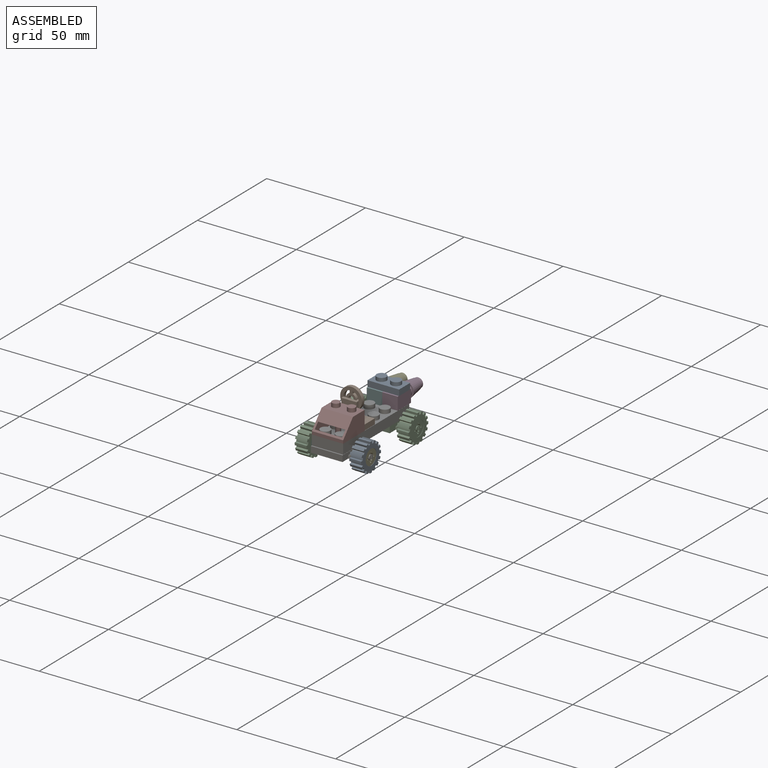
[diagram: assembled view]
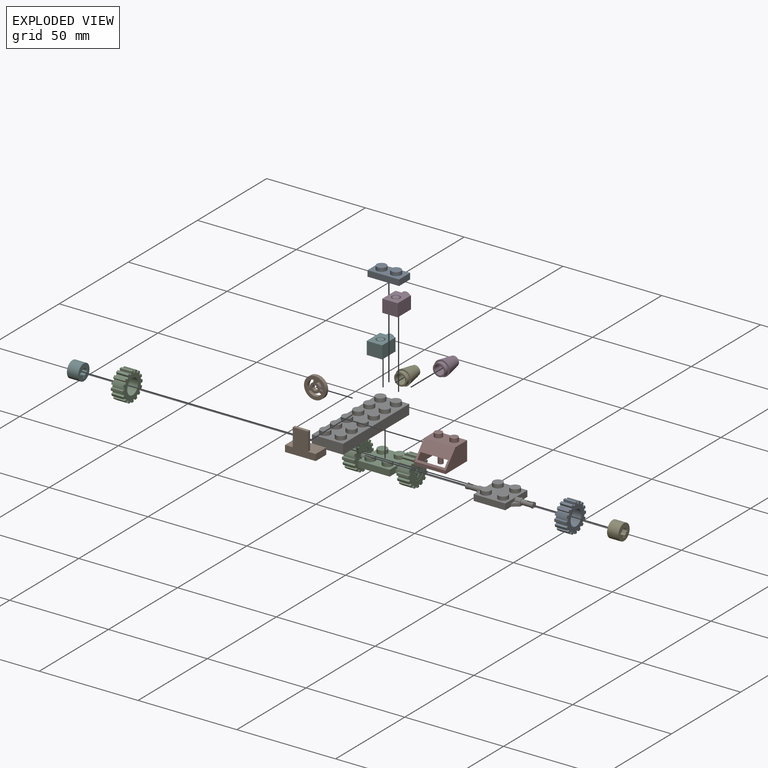
[diagram: exploded view]
GUIDED TOUR — MATED ASSEMBLY WITH SUBASSEMBLIES (Onshape document 5908bd3b1f64391017bcbc16, AutoMate assembly 5908bd3b1f64391017bcbc16_93580afd437a5e38cb3de206_40b358b850b188636dec0b28_default)

This assembly has 19 component occurrences arranged in 15 top-level units: 14 individual components plus 1 subassembly (S0). The tour has two levels: first the top level, where each subassembly is treated as one rigid unit; then each subassembly is toured internally in its own section (nesting deeper than one subassembly level is flattened into its subassembly's section).

Components are labeled P0..P18 across the whole record; subassembly units are labeled S0..S0. A mate is a constraint between two units; its type names the relative motion it leaves free:
  FASTENED — locks the two components together rigidly (no relative motion).
Axis/direction vectors are unit vectors and 'through' points are millimeter coordinates, both in the assembly's world frame.

TOP-LEVEL MATES (between units; each subassembly's internal mates are listed in its own section)
  1. FASTENED "Fastened 2": P16 <-> P18, direction (-1.000, 0.000, 0.000) through (-28.91, 1.36, -17.36) mm
  2. FASTENED "Fastened 4": P13 <-> P17, direction (1.000, 0.000, 0.000) through (-56.66, 1.36, -17.36) mm
  3. FASTENED "Fastened 9": P1 <-> P12, direction (0.000, 1.000, 0.000) through (-39.95, 11.06, 1.17) mm
  4. FASTENED "Fastened 10": P5 <-> P6, direction (0.000, 0.000, -1.000) through (-43.88, 37.84, -10.82) mm
  5. FASTENED "Fastened 7": P8 <-> P6, direction (-1.000, 0.000, 0.000) through (-39.95, -5.96, -10.82) mm
  6. FASTENED "Fastened 5": P6 <-> P18, direction (0.000, 0.000, -1.000) through (-39.91, 1.36, -15.82) mm
  7. FASTENED "Fastened 13": P4 <-> P5, direction (0.000, -1.000, 0.000) through (-43.86, 43.15, -6.83) mm
  8. FASTENED "Fastened 1": P17 <-> P18, direction (1.000, 0.000, 0.000) through (-50.91, 1.36, -17.36) mm
  9. FASTENED "Fastened 6": P6 <-> S0, direction (0.000, 0.000, -1.000) through (-40.07, 35.76, -15.82) mm
  10. FASTENED "Fastened 14": P11 <-> P3, direction (0.000, 0.000, -1.000) through (-39.93, 38.35, -4.38) mm
  11. FASTENED "Fastened 12": P14 <-> P3, direction (0.000, -1.000, 0.000) through (-36.01, 43.15, -6.83) mm
  12. FASTENED "Fastened 11": P3 <-> P6, direction (0.000, 0.000, -1.000) through (-36.03, 37.84, -10.82) mm
  13. FASTENED "Fastened 3": P0 <-> P16, direction (-1.000, 0.000, 0.000) through (-26.03, 1.36, -17.36) mm
  14. FASTENED "Fastened 8": P1 <-> P8, direction (0.000, -1.000, 0.000) through (-39.95, 9.52, -6.02) mm

TOP-LEVEL ASSEMBLY ORDER
  1. P6 — the base component [order heuristic]
  2. S0 — core [order heuristic]
  3. P3 — core [order heuristic]
  4. P5 — core [order heuristic]
  5. P8 [order verified]
  6. P1 — core [order heuristic]
  7. P4 — core [order heuristic]
  8. P14 — core [order heuristic]
  9. P18 — core [order heuristic]
  10. P13 — core [order heuristic]
  11. P17 — core [order heuristic]
  12. P0 — core [order heuristic]
  13. P16 — core [order heuristic]
  14. P11 [order verified]
  15. P12 [order verified]
Order-tag legend:
  [order verified] — this step's position reverses a verified removal order: the component was checked to insert without passing through the ones already placed.
  [order heuristic] — the first 12 components form the assembly's core: parts whose collision-free extraction could not be verified, listed in mate-graph order.

Of the 19 component occurrences, 14 carry the full construction recipe — the FeatureScript program that regenerates the part's solid from scratch; the rest are supplied as boundary geometry only. Each toured unit is shown spotlighted twice — assembled, then exploded with a leader line back to its socket (green = recipe-attached component, orange = geometry-only, blue = subassembly unit; the rest desaturated gray).
NOTE — document 2 of 2 of this assembly tour. The two overview renders and the header above are repeated from document 1; the component sections below continue where the previous document stopped.
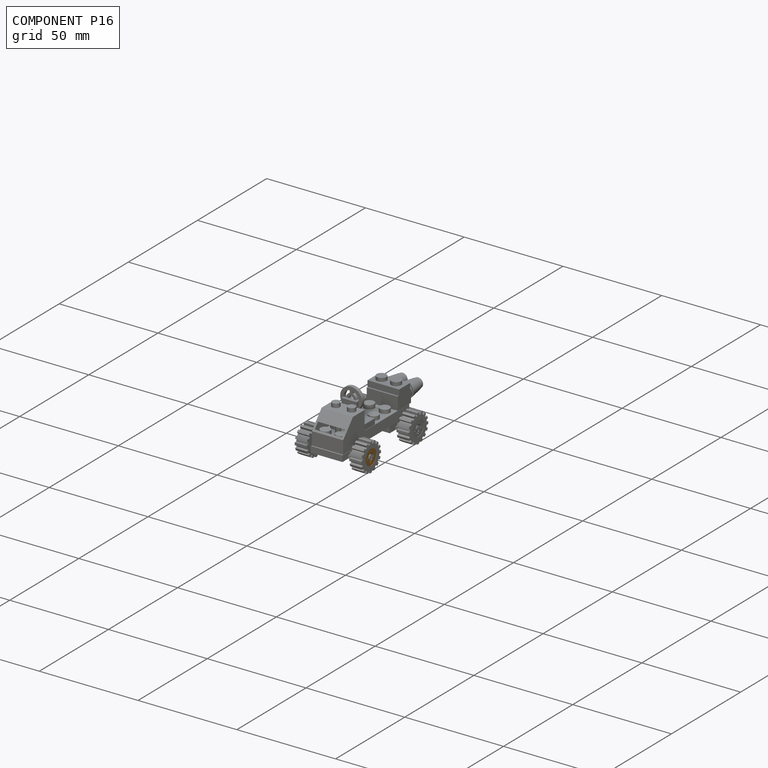
[diagram: component P16 — assembled]
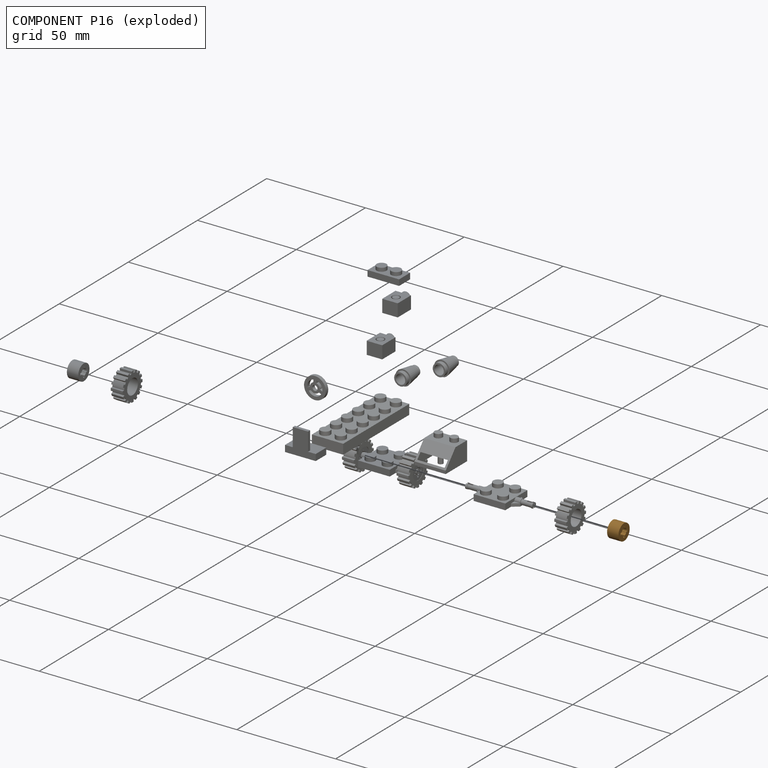
[diagram: component P16 — exploded]
COMPONENT P16 — geometry summary (no construction recipe available for this part):
  bounding box: 8.2 x 8.2 x 5.8 mm
  B-rep topology: 1 solid, 19 faces, 102 edges
  volume: 226 mm^3 (59% of its bounding box)
  symmetry: 2-fold rotationally symmetric about the x axis; 4-fold rotationally symmetric about the y axis; 2-fold rotationally symmetric about the z axis; mirror-symmetric across its x mid-plane, y mid-plane, z mid-plane
Held by: FASTENED mate "Fastened 2" to P18; FASTENED mate "Fastened 3" to P0.
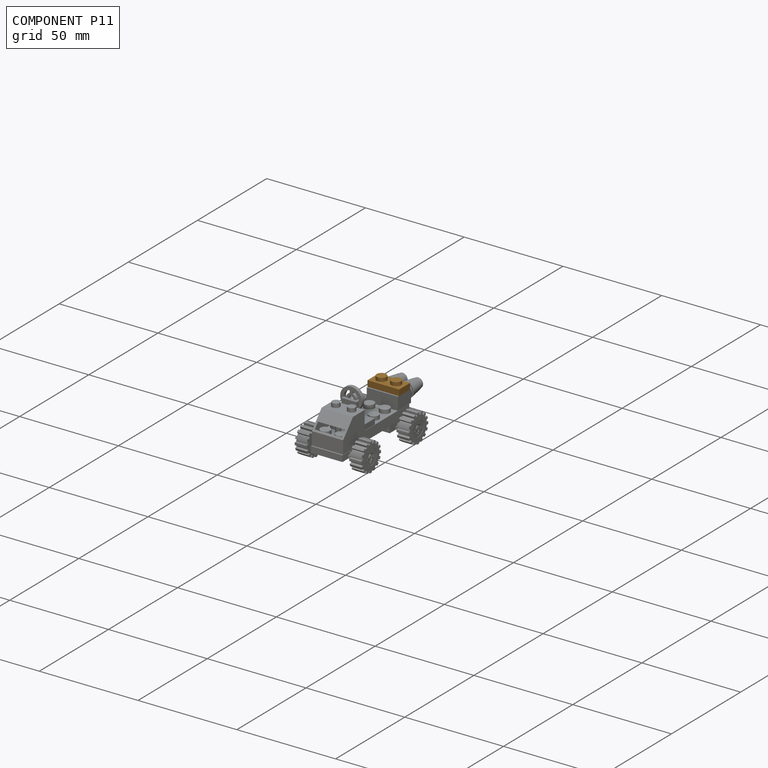
[diagram: component P11 — assembled]
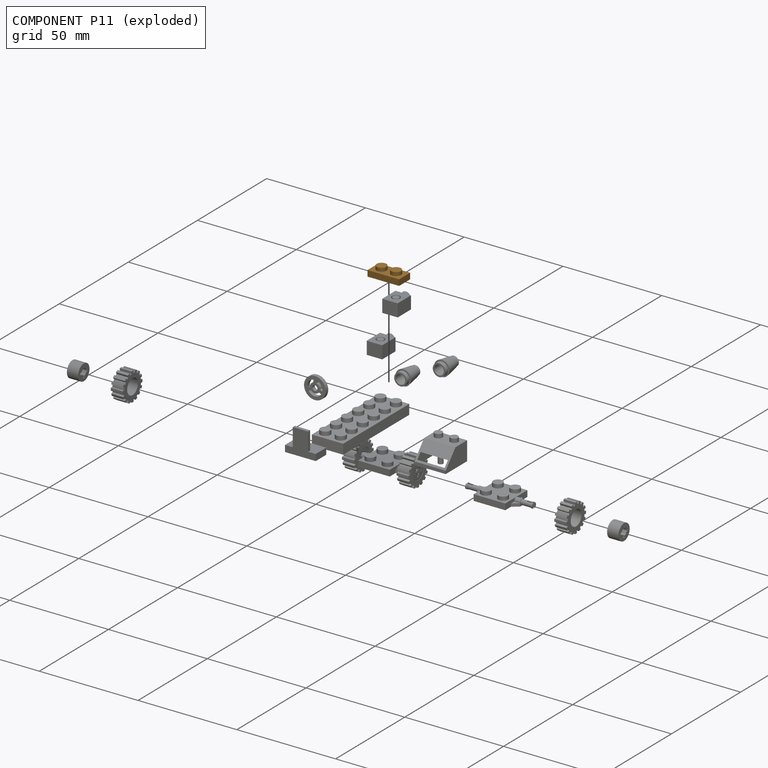
[diagram: component P11 — exploded]
COMPONENT P11 — geometry summary (no construction recipe available for this part):
  bounding box: 16.0 x 8.0 x 4.8 mm
  B-rep topology: 1 solid, 17 faces, 66 edges
  volume: 332 mm^3 (54% of its bounding box)
  symmetry: 2-fold rotationally symmetric about the z axis; mirror-symmetric across its x mid-plane, y mid-plane
Held by: FASTENED mate "Fastened 14" to P3.
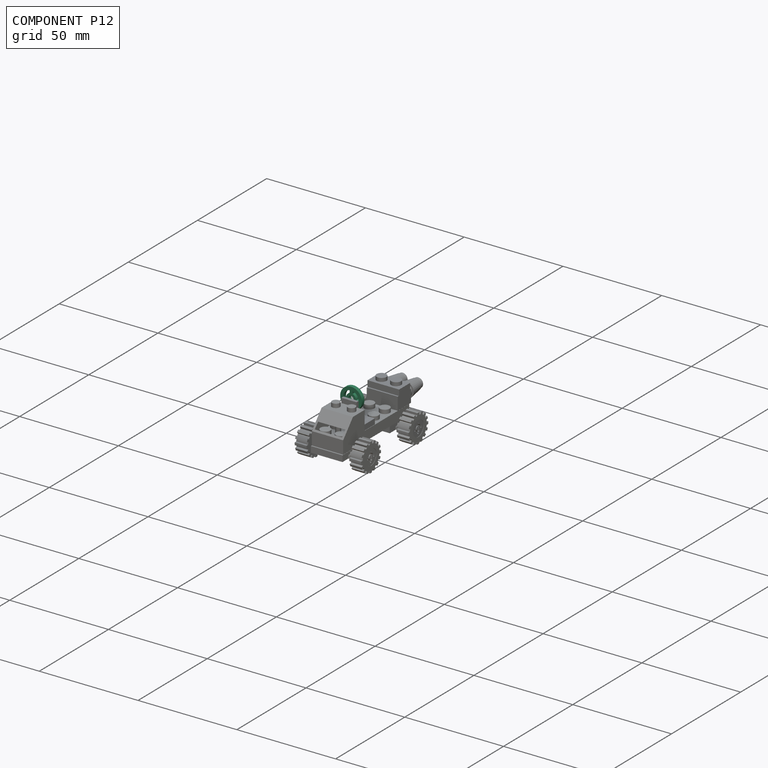
[diagram: component P12 — assembled]
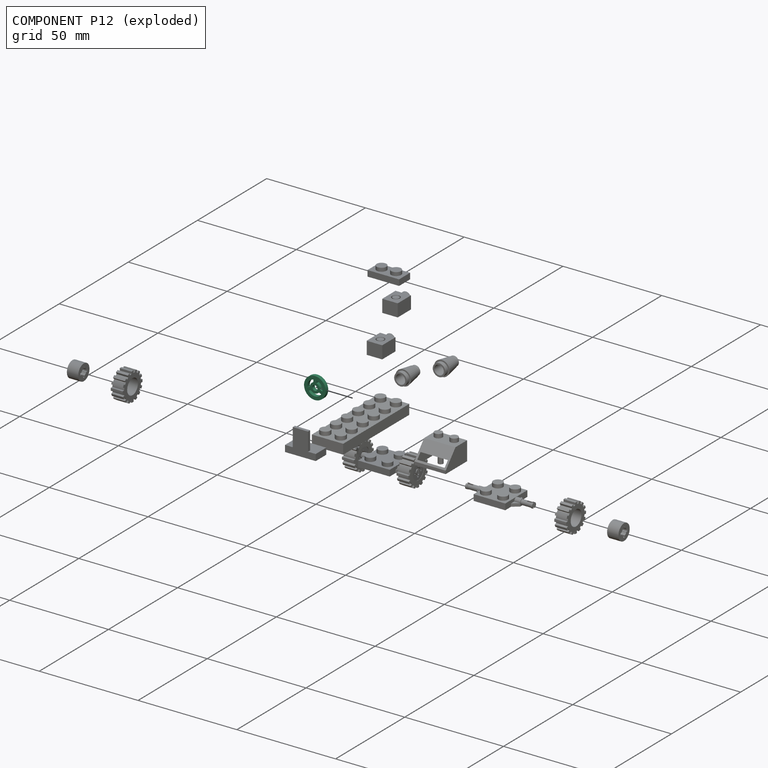
[diagram: component P12 — exploded]
COMPONENT P12 — recipe-attached (CADFS 00787975, mesh-verified: the recipe's output STEP matches this component's geometry to below the mesh-comparison resolution (tessellation chordal tolerance ~0.0235 mm)).
Held by: FASTENED mate "Fastened 9" to P1.
Construction recipe (FeatureScript — the CAD program that rebuilds this solid; sketch coordinates are in the units given by the * unit suffixes, e.g. mm):

FeatureScript 1511;
import(path : "onshape/std/geometry.fs", version : "1511.0");
import(path : "onshape/std/common.fs", version : "1511.0");
const mm = millimeter;
const VERTEX = EntityType.VERTEX;
const EDGE = EntityType.EDGE;
const FACE = EntityType.FACE;
const BODY = EntityType.BODY;
function v(x, y){return vector(x, y);}
function OD(order){return orderDisambiguation(order);}
function OSD(set){return originalSetDisambiguation(set);}
function TD(topology){return topologyDisambiguation(topology);}
function TDD(query){return trueDependencyDisambiguation(query);}
function sQuery(a, b, c) {return sketchEntityQuery(a, b, c);}

annotation { "Feature Type Name" : "Feature", "Feature Type Description" : "" }
export const myFeature = defineFeature(function(context is Context, id is Id, definition is map)
    precondition{}
    {
        {
            var Q0;
            Q0=qCreatedBy(makeId("Front.planeOp"),FACE);
            var sketch = newSketch(context, id + "F0", { "sketchPlane" : qUnion([Q0])});
            skCircle(sketch, "E0", {"center": v(0, 0) * mm, "radius": 5.5 * mm});
            skCircle(sketch, "E1", {"center": v(0, 0) * mm, "radius": 2.5 * mm});
            skCircle(sketch, "E2", {"center": v(0, 0) * mm, "radius": 3.8 * mm});
            skLineSegment(sketch, "E3", {"start": v(-0.75, 2.38) * mm, "end": v(-0.75, 3.73) * mm});
            skLineSegment(sketch, "E4", {"start": v(0.75, 2.38) * mm, "end": v(0.75, 3.73) * mm});
            skLineSegment(sketch, "E5", {"start": v(-2.5, -0.04) * mm, "end": v(-3.75, -0.62) * mm});
            skLineSegment(sketch, "E6", {"start": v(-2.02, -1.47) * mm, "end": v(-3.21, -2.03) * mm});
            skLineSegment(sketch, "E7", {"start": v(2.5, -0.04) * mm, "end": v(3.75, -0.62) * mm});
            skLineSegment(sketch, "E8", {"start": v(2.02, -1.47) * mm, "end": v(3.21, -2.03) * mm});
            skCircle(sketch, "E9", {"center": v(0, 0) * mm, "radius": 1.3 * mm});
            skSolve(sketch);
        }
        {
            var Q0;
            Q0 = qSketchRegion(id + "F0", true);
            var Q1;
            {var subQ0=sQuery(id+"F0.wireOp",EDGE,"E7");Q1=makeQuery(id+"F0.imprint","IMPRINT",FACE,{"disambiguationData":[TD([[makeQuery(id+"F0.imprint","IMPRINT",EDGE,{"derivedFrom":subQ0}),-1.0]])]});}
            var Q2;
            {var subQ0=sQuery(id+"F0.wireOp",EDGE,"E3");Q2=makeQuery(id+"F0.imprint","IMPRINT",FACE,{"disambiguationData":[TD([[makeQuery(id+"F0.imprint","IMPRINT",EDGE,{"derivedFrom":subQ0}),-1.0]])]});}
            var Q3;
            {var subQ0=sQuery(id+"F0.wireOp",EDGE,"E5");Q3=makeQuery(id+"F0.imprint","IMPRINT",FACE,{"disambiguationData":[TD([[makeQuery(id+"F0.imprint","IMPRINT",EDGE,{"derivedFrom":subQ0}),1.0]])]});}
            var Q4;
            Q4=makeQuery(id+"F0.imprint","IMPRINT",FACE,{"disambiguationData":[TD([[makeQuery(id+"F0.imprint","IMPRINT",EDGE,{"derivedFrom":sQuery(id+"F0.wireOp",EDGE,"E9")}),-1.0]])]});
            extrude(context, id + "F1", {"entities" : qUnion([Q0, Q1, Q2, Q3, Q4]), "depth" : 1.8 * mm, "offsetDistance" : 25 * mm});
        }
    });
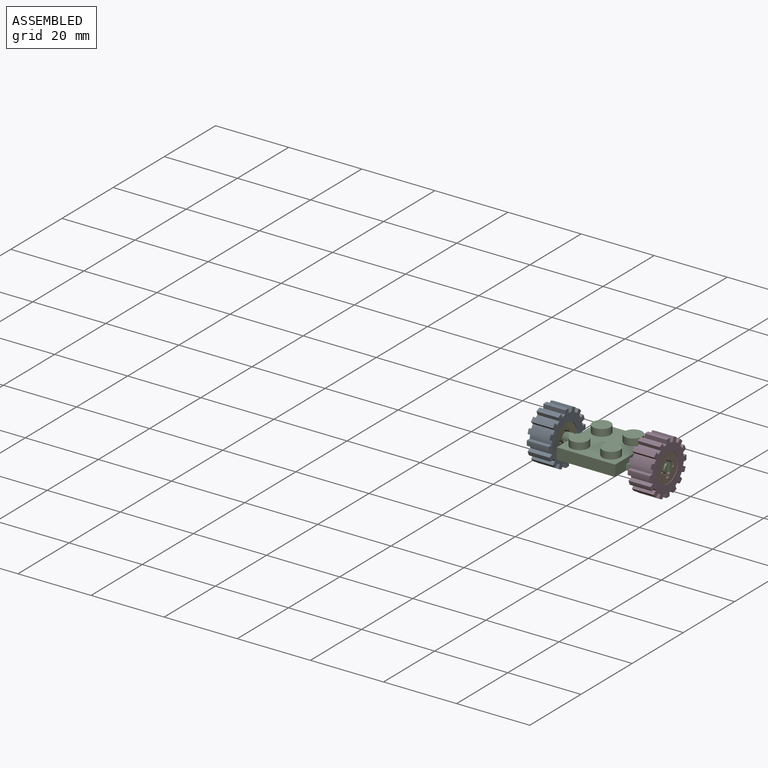
[diagram: subassembly S0 — assembled view]
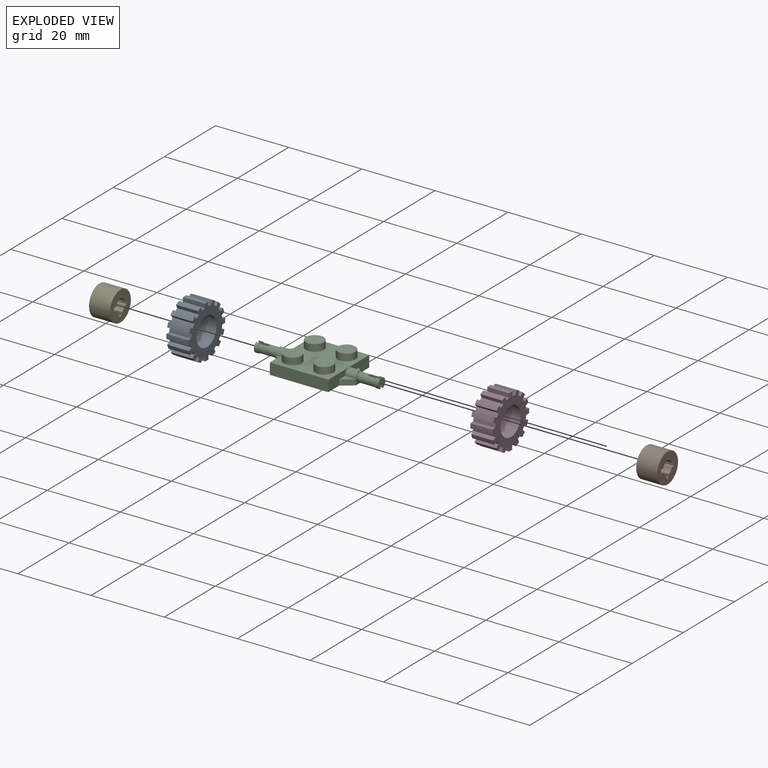
[diagram: subassembly S0 — exploded view]
SUBASSEMBLY S0 TOUR — 5 components, shown here in isolation at its own camera.

INTERNAL MATES
  1. FASTENED "Fastened 2": P7 <-> P9, direction (-1.000, 0.000, 0.000) through (-29.07, 35.76, -17.36) mm
  2. FASTENED "Fastened 3": P10 <-> P7, direction (-1.000, 0.000, 0.000) through (-26.20, 35.76, -17.36) mm
  3. FASTENED "Fastened 4": P2 <-> P15, direction (1.000, 0.000, 0.000) through (-56.82, 35.76, -17.36) mm
  4. FASTENED "Fastened 1": P15 <-> P9, direction (1.000, 0.000, 0.000) through (-51.07, 35.76, -17.36) mm

ASSEMBLY ORDER (within the subassembly)
  1. P7 — the base component [order heuristic]
  2. P9 [order heuristic]
  3. P10 [order heuristic]
  4. P15 [order heuristic]
  5. P2 [order heuristic]
Order-tag legend:
  [order heuristic] — this assembly is geometrically interlocked (no collision-free removal order exists), so components are listed in mate-graph order; insertion feasibility is not verified.
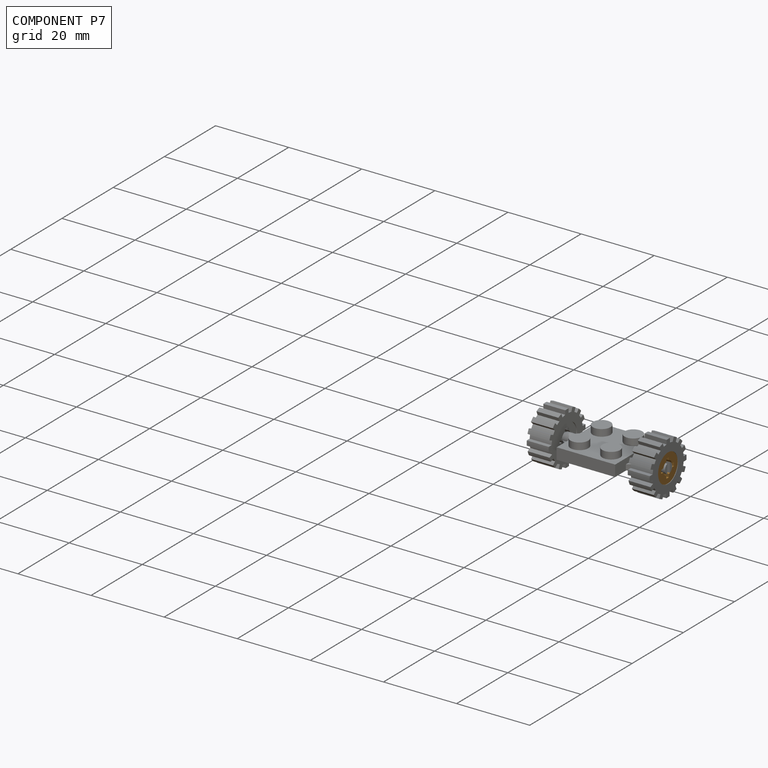
[diagram: component P7 — assembled]
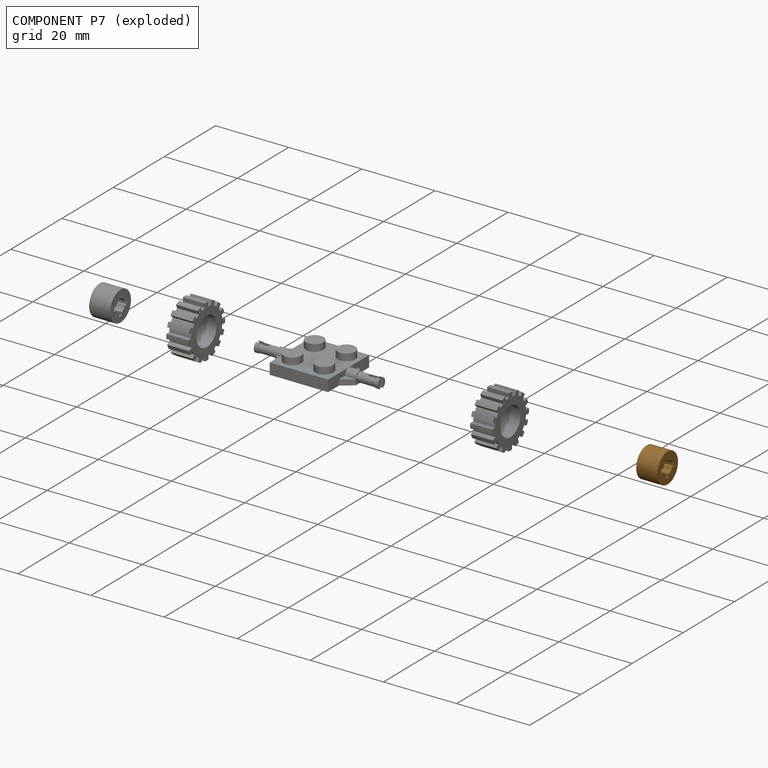
[diagram: component P7 — exploded]
COMPONENT P7 — geometry summary (no construction recipe available for this part):
  bounding box: 8.2 x 8.2 x 5.8 mm
  B-rep topology: 1 solid, 19 faces, 102 edges
  volume: 226 mm^3 (59% of its bounding box)
  symmetry: 2-fold rotationally symmetric about the x axis; 4-fold rotationally symmetric about the y axis; 2-fold rotationally symmetric about the z axis; mirror-symmetric across its x mid-plane, y mid-plane, z mid-plane
Held by: FASTENED mate "Fastened 2" to P9; FASTENED mate "Fastened 3" to P10.
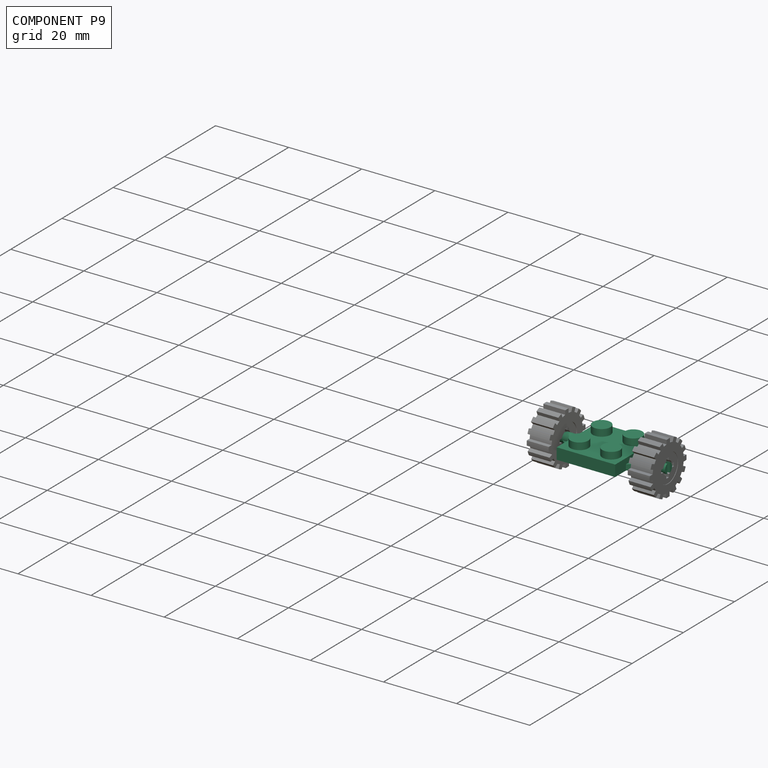
[diagram: component P9 — assembled]
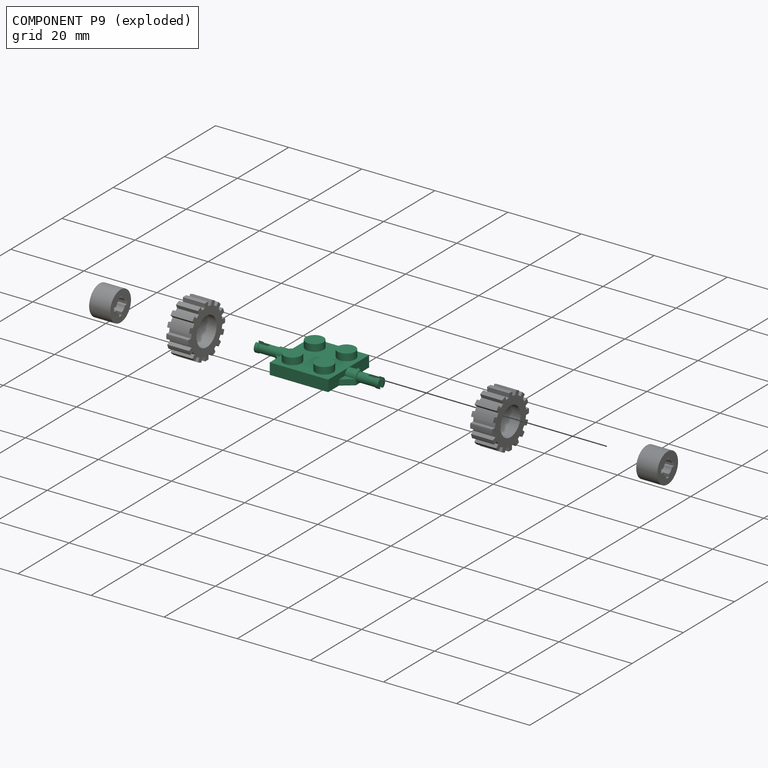
[diagram: component P9 — exploded]
COMPONENT P9 — recipe-attached (CADFS 00735374, mesh-verified: the recipe's output STEP matches this component's geometry to below the mesh-comparison resolution (tessellation chordal tolerance ~0.0569 mm)).
Held by: FASTENED mate "Fastened 2" to P7; FASTENED mate "Fastened 1" to P15.
Construction recipe (FeatureScript — the CAD program that rebuilds this solid; sketch coordinates are in the units given by the * unit suffixes, e.g. mm):

FeatureScript 1511;
import(path : "onshape/std/geometry.fs", version : "1511.0");
import(path : "onshape/std/common.fs", version : "1511.0");
const mm = millimeter;
const VERTEX = EntityType.VERTEX;
const EDGE = EntityType.EDGE;
const FACE = EntityType.FACE;
const BODY = EntityType.BODY;
function v(x, y){return vector(x, y);}
function OD(order){return orderDisambiguation(order);}
function OSD(set){return originalSetDisambiguation(set);}
function TD(topology){return topologyDisambiguation(topology);}
function TDD(query){return trueDependencyDisambiguation(query);}
function sQuery(a, b, c) {return sketchEntityQuery(a, b, c);}

annotation { "Feature Type Name" : "Feature", "Feature Type Description" : "" }
export const myFeature = defineFeature(function(context is Context, id is Id, definition is map)
    precondition{}
    {
        {
            var Q0;
            Q0=qCreatedBy(makeId("Top.planeOp"),FACE);
            var sketch = newSketch(context, id + "F0", { "sketchPlane" : qUnion([Q0])});
            skLineSegment(sketch, "E0", {"start": v(-18.34, 23.52) * mm, "end": v(-2.34, 23.52) * mm});
            skLineSegment(sketch, "E1", {"start": v(-18.34, 23.52) * mm, "end": v(-18.34, 7.52) * mm});
            skLineSegment(sketch, "E2", {"start": v(-18.34, 7.52) * mm, "end": v(-2.34, 7.52) * mm});
            skLineSegment(sketch, "E3", {"start": v(-2.34, 23.52) * mm, "end": v(-2.34, 7.52) * mm});
            skSolve(sketch);
        }
        {
            var Q0;
            Q0 = qSketchRegion(id + "F0", true);
            extrude(context, id + "F1", {"entities" : qUnion([Q0]), "depth" : 3.08 * mm, "offsetDistance" : 25 * mm});
        }
        {
            var Q0;
            Q0=makeQuery(id+"F1.opExtrude","CAP_FACE",FACE,{"disambiguationData":[OSD([sQuery(id+"F0.wireOp",EDGE,"E0"),sQuery(id+"F0.wireOp",EDGE,"E1"),sQuery(id+"F0.wireOp",EDGE,"E2"),sQuery(id+"F0.wireOp",EDGE,"E3")])],"isStart":false});
            var sketch = newSketch(context, id + "F2", { "sketchPlane" : qUnion([Q0])});
            skCircle(sketch, "E4", {"center": v(-14.68, 19.86) * mm, "radius": 2.44 * mm});
            skCircle(sketch, "E5", {"center": v(-6, 19.86) * mm, "radius": 2.44 * mm});
            skCircle(sketch, "E6", {"center": v(-14.68, 11.17) * mm, "radius": 2.44 * mm});
            skCircle(sketch, "E7", {"center": v(-6, 11.17) * mm, "radius": 2.44 * mm});
            skSolve(sketch);
        }
        {
            var Q0;
            Q0 = qSketchRegion(id + "F2", true);
            extrude(context, id + "F3", {"entities" : qUnion([Q0]), "operationType" : NewBodyOperationType.ADD, "depth" : 1.89 * mm, "offsetDistance" : 25 * mm});
        }
        {
            var Q0;
            Q0=makeQuery(id+"F1.opExtrude","SWEPT_FACE",FACE,{"disambiguationData":[OSD([sQuery(id+"F0.wireOp",EDGE,"E3")])]});
            var sketch = newSketch(context, id + "F4", { "sketchPlane" : qUnion([Q0])});
            skCircle(sketch, "E8", {"center": v(15.52, 1.54) * mm, "radius": 1.5 * mm});
            skPoint(sketch, "E8.centerSnap0", {"position": v(23.52, 1.54) * mm});
            skPoint(sketch, "E8.centerSnap1", {"position": v(15.52, 3.08) * mm});
            skSolve(sketch);
        }
        {
            var Q0;
            Q0 = qSketchRegion(id + "F4", true);
            extrude(context, id + "F5", {"entities" : qUnion([Q0]), "operationType" : NewBodyOperationType.ADD, "depth" : 3 * mm, "offsetDistance" : 25 * mm});
        }
        {
            var Q0;
            Q0=makeQuery(id+"F1.opExtrude","SWEPT_FACE",FACE,{"disambiguationData":[OSD([sQuery(id+"F0.wireOp",EDGE,"E1")])]});
            var sketch = newSketch(context, id + "F6", { "sketchPlane" : qUnion([Q0])});
            skCircle(sketch, "E9", {"center": v(-15.52, 1.54) * mm, "radius": 1.5 * mm});
            skPoint(sketch, "E9.centerSnap0", {"position": v(-7.52, 1.54) * mm});
            skPoint(sketch, "E9.centerSnap1", {"position": v(-15.52, 3.08) * mm});
            skSolve(sketch);
        }
        {
            var Q0;
            Q0 = qSketchRegion(id + "F6", true);
            extrude(context, id + "F7", {"entities" : qUnion([Q0]), "operationType" : NewBodyOperationType.ADD, "depth" : 3 * mm, "offsetDistance" : 25 * mm});
        }
        {
            var Q0;
            Q0=makeQuery(id+"F7.opExtrude","CAP_FACE",FACE,{"disambiguationData":[OSD([sQuery(id+"F6.wireOp",EDGE,"E9")])],"isStart":false});
            var sketch = newSketch(context, id + "F8", { "sketchPlane" : qUnion([Q0])});
            skCircle(sketch, "E10", {"center": v(-15.52, 1.54) * mm, "radius": 1.25 * mm});
            skSolve(sketch);
        }
        {
            var Q0;
            Q0 = qSketchRegion(id + "F8", true);
            extrude(context, id + "F9", {"entities" : qUnion([Q0]), "operationType" : NewBodyOperationType.ADD, "depth" : 5 * mm, "offsetDistance" : 25 * mm});
        }
        {
            var Q0;
            Q0=makeQuery(id+"F5.opExtrude","CAP_FACE",FACE,{"disambiguationData":[OSD([sQuery(id+"F4.wireOp",EDGE,"E8")])],"isStart":false});
            var sketch = newSketch(context, id + "F10", { "sketchPlane" : qUnion([Q0])});
            skCircle(sketch, "E11", {"center": v(15.52, 1.54) * mm, "radius": 1.25 * mm});
            skSolve(sketch);
        }
        {
            var Q0;
            Q0 = qSketchRegion(id + "F10", true);
            extrude(context, id + "F11", {"entities" : qUnion([Q0]), "operationType" : NewBodyOperationType.ADD, "depth" : 5 * mm, "offsetDistance" : 25 * mm});
        }
        {
            var Q0;
            Q0=makeQuery(id+"F1.opExtrude","SWEPT_FACE",FACE,{"disambiguationData":[OSD([sQuery(id+"F0.wireOp",EDGE,"E1")])]});
            var sketch = newSketch(context, id + "F12", { "sketchPlane" : qUnion([Q0])});
            skLineSegment(sketch, "E12", {"start": v(-19.32, 1.54) * mm, "end": v(-19.32, 0) * mm});
            skPoint(sketch, "E12.startSnap0", {"position": v(-23.52, 1.54) * mm});
            skLineSegment(sketch, "E13", {"start": v(-19.32, 0) * mm, "end": v(-11.72, 0) * mm});
            skLineSegment(sketch, "E14", {"start": v(-11.72, 0) * mm, "end": v(-11.72, 1.54) * mm});
            skLineSegment(sketch, "E15", {"start": v(-11.72, 1.54) * mm, "end": v(-14.02, 1.54) * mm});
            skLineSegment(sketch, "E16", {"start": v(-19.32, 1.54) * mm, "end": v(-17.02, 1.54) * mm});
            skSolve(sketch);
        }
        {
            var Q0;
            Q0 = qSketchRegion(id + "F12", true);
            var Q1;
            Q1=makeQuery(id+"F12.imprint","IMPRINT",FACE,{"disambiguationData":[TD([[makeQuery(id+"F12.imprint","IMPRINT",EDGE,{"derivedFrom":sQuery(id+"F12.wireOp",EDGE,"E12")}),1.0]])]});
            extrude(context, id + "F13", {"entities" : qUnion([Q0, Q1]), "operationType" : NewBodyOperationType.ADD, "depth" : 3 * mm, "offsetDistance" : 25 * mm});
        }
        {
            var Q0;
            Q0=makeQuery(id+"F1.opExtrude","SWEPT_FACE",FACE,{"disambiguationData":[OSD([sQuery(id+"F0.wireOp",EDGE,"E3")])]});
            var sketch = newSketch(context, id + "F14", { "sketchPlane" : qUnion([Q0])});
            skLineSegment(sketch, "E17", {"start": v(11.72, 1.54) * mm, "end": v(11.72, 0) * mm});
            skPoint(sketch, "E17.startSnap0", {"position": v(7.52, 1.54) * mm});
            skLineSegment(sketch, "E18", {"start": v(11.72, 0) * mm, "end": v(19.32, 0) * mm});
            skLineSegment(sketch, "E19", {"start": v(19.32, 0) * mm, "end": v(19.32, 1.54) * mm});
            skLineSegment(sketch, "E20", {"start": v(19.32, 1.54) * mm, "end": v(17.02, 1.54) * mm});
            skLineSegment(sketch, "E21", {"start": v(11.72, 1.54) * mm, "end": v(14.02, 1.54) * mm});
            skSolve(sketch);
        }
        {
            var Q0;
            Q0 = qSketchRegion(id + "F14", true);
            var Q1;
            Q1=makeQuery(id+"F14.imprint","IMPRINT",FACE,{"disambiguationData":[TD([[makeQuery(id+"F14.imprint","IMPRINT",EDGE,{"derivedFrom":sQuery(id+"F14.wireOp",EDGE,"E17")}),1.0]])]});
            extrude(context, id + "F15", {"entities" : qUnion([Q0, Q1]), "operationType" : NewBodyOperationType.ADD, "depth" : 3 * mm, "offsetDistance" : 25 * mm});
        }
        {
            var Q0;
            Q0=makeQuery(id+"F13.opExtrude","SWEPT_FACE",FACE,{"disambiguationData":[OSD([sQuery(id+"F12.wireOp",EDGE,"E16")])]});
            var sketch = newSketch(context, id + "F16", { "sketchPlane" : qUnion([Q0])});
            skLineSegment(sketch, "E22", {"start": v(-18.34, 19.32) * mm, "end": v(-21.34, 19.32) * mm});
            skLineSegment(sketch, "E23", {"start": v(-21.34, 19.32) * mm, "end": v(-21.34, 17.02) * mm});
            skLineSegment(sketch, "E24", {"start": v(-21.34, 17.02) * mm, "end": v(-18.34, 19.32) * mm});
            skLineSegment(sketch, "E25", {"start": v(-21.34, 11.72) * mm, "end": v(-21.34, 14.02) * mm});
            skLineSegment(sketch, "E26", {"start": v(-21.34, 14.02) * mm, "end": v(-18.34, 11.72) * mm});
            skLineSegment(sketch, "E27", {"start": v(-18.34, 11.72) * mm, "end": v(-21.34, 11.72) * mm});
            skSolve(sketch);
        }
        {
            var Q0;
            Q0=makeQuery(id+"F16.imprint","IMPRINT",FACE,{"disambiguationData":[TD([[makeQuery(id+"F16.imprint","IMPRINT",EDGE,{"derivedFrom":sQuery(id+"F16.wireOp",EDGE,"E25")}),-1.0]])]});
            var Q1;
            Q1=makeQuery(id+"F16.imprint","IMPRINT",FACE,{"disambiguationData":[TD([[makeQuery(id+"F16.imprint","IMPRINT",EDGE,{"derivedFrom":sQuery(id+"F16.wireOp",EDGE,"E22")}),-1.0]])]});
            extrude(context, id + "F17", {"entities" : qUnion([Q0, Q1]), "operationType" : NewBodyOperationType.REMOVE, "oppositeDirection" : true, "depth" : 25 * mm, "offsetDistance" : 25 * mm});
        }
        {
            var Q0;
            Q0=makeQuery(id+"F15.opExtrude","SWEPT_FACE",FACE,{"disambiguationData":[OSD([sQuery(id+"F14.wireOp",EDGE,"E21")])]});
            var sketch = newSketch(context, id + "F18", { "sketchPlane" : qUnion([Q0])});
            skLineSegment(sketch, "E28", {"start": v(-2.34, 11.72) * mm, "end": v(0.66, 11.72) * mm});
            skLineSegment(sketch, "E29", {"start": v(0.66, 11.72) * mm, "end": v(0.66, 14.02) * mm});
            skLineSegment(sketch, "E30", {"start": v(0.66, 14.02) * mm, "end": v(-2.34, 11.72) * mm});
            skLineSegment(sketch, "E31", {"start": v(-2.34, 19.31) * mm, "end": v(0.66, 17.01) * mm});
            skPoint(sketch, "E32.start.orphan", {"position": v(-2.34, 17.01) * mm});
            skLineSegment(sketch, "E33", {"start": v(-2.34, 19.31) * mm, "end": v(0.66, 19.31) * mm});
            skLineSegment(sketch, "E34", {"start": v(0.66, 19.31) * mm, "end": v(0.66, 17.01) * mm});
            skSolve(sketch);
        }
        {
            var Q0;
            Q0 = qSketchRegion(id + "F18", true);
            extrude(context, id + "F19", {"entities" : qUnion([Q0]), "operationType" : NewBodyOperationType.REMOVE, "oppositeDirection" : true, "depth" : 25 * mm, "offsetDistance" : 25 * mm});
        }
        {
            var Q0;
            Q0=makeQuery(id+"F9.opExtrude","CAP_FACE",FACE,{"disambiguationData":[OSD([sQuery(id+"F8.wireOp",EDGE,"E10")])],"isStart":false});
            var sketch = newSketch(context, id + "F20", { "sketchPlane" : qUnion([Q0])});
            skLineSegment(sketch, "E35", {"start": v(-16.02, 2.69) * mm, "end": v(-16.02, 0.4) * mm});
            skLineSegment(sketch, "E36", {"start": v(-15.02, 2.69) * mm, "end": v(-15.02, 0.4) * mm});
            skSolve(sketch);
        }
        {
            var Q0;
            Q0 = qSketchRegion(id + "F20", true);
            var Q1;
            {var subQ0=sQuery(id+"F20.wireOp",EDGE,"E35");Q1=makeQuery(id+"F20.imprint","IMPRINT",FACE,{"disambiguationData":[TD([[makeQuery(id+"F20.imprint","IMPRINT",EDGE,{"derivedFrom":subQ0}),1.0]])]});}
            extrude(context, id + "F21", {"entities" : qUnion([Q0, Q1]), "operationType" : NewBodyOperationType.REMOVE, "oppositeDirection" : true, "depth" : 2.3 * mm, "offsetDistance" : 25 * mm});
        }
        {
            var Q0;
            Q0=makeQuery(id+"F11.opExtrude","CAP_FACE",FACE,{"disambiguationData":[OSD([sQuery(id+"F10.wireOp",EDGE,"E11")])],"isStart":false});
            var sketch = newSketch(context, id + "F22", { "sketchPlane" : qUnion([Q0])});
            skLineSegment(sketch, "E37", {"start": v(15.02, 2.69) * mm, "end": v(15.02, 0.4) * mm});
            skLineSegment(sketch, "E38", {"start": v(16.02, 2.69) * mm, "end": v(16.02, 0.4) * mm});
            skSolve(sketch);
        }
        {
            var Q0;
            Q0 = qSketchRegion(id + "F22", true);
            var Q1;
            {var subQ0=sQuery(id+"F22.wireOp",EDGE,"E37");Q1=makeQuery(id+"F22.imprint","IMPRINT",FACE,{"disambiguationData":[TD([[makeQuery(id+"F22.imprint","IMPRINT",EDGE,{"derivedFrom":subQ0}),1.0]])]});}
            extrude(context, id + "F23", {"entities" : qUnion([Q0, Q1]), "operationType" : NewBodyOperationType.REMOVE, "oppositeDirection" : true, "depth" : 2.3 * mm, "offsetDistance" : 25 * mm});
        }
        {
            var Q0;
            {var subQ0=sQuery(id+"F8.wireOp",EDGE,"E10");Q0=makeQuery(id+"F21.boolean.opBoolean","SPLIT",FACE,{"disambiguationData":[TD([makeQuery(id+"F21.opExtrude","SWEPT_FACE",FACE,{"disambiguationData":[OSD([sQuery(id+"F20.wireOp",EDGE,"E36")])]})])],"derivedFrom":makeQuery(id+"F9.opExtrude","CAP_FACE",FACE,{"disambiguationData":[OSD([subQ0])],"isStart":false})});}
            var sketch = newSketch(context, id + "F24", { "sketchPlane" : qUnion([Q0])});
            skCircle(sketch, "E39", {"center": v(-15.52, 1.54) * mm, "radius": 1.4 * mm});
            skLineSegment(sketch, "E40", {"start": v(-16.02, 2.85) * mm, "end": v(-16.02, 0.23) * mm});
            skLineSegment(sketch, "E41", {"start": v(-15.02, 2.85) * mm, "end": v(-15.02, 0.23) * mm});
            skSolve(sketch);
        }
        {
            var Q0;
            {var subQ4=sQuery(id+"F8.wireOp",EDGE,"E10");var subQ5=makeQuery(id+"F21.boolean.opBoolean","SPLIT",EDGE,{"disambiguationData":[TD([makeQuery(id+"F21.opExtrude","SWEPT_FACE",FACE,{"disambiguationData":[OSD([sQuery(id+"F20.wireOp",EDGE,"E36")])]})])],"derivedFrom":makeQuery(id+"F9.opExtrude","CAP_EDGE",EDGE,{"disambiguationData":[OSD([subQ4])],"isStart":false})});Q0=makeQuery(id+"F24.imprint","IMPRINT",FACE,{"disambiguationData":[TD([[makeQuery(id+"F24.imprint","IMPRINT",EDGE,{"derivedFrom":subQ5}),-1.0]])]});}
            var Q1;
            {var subQ0=sQuery(id+"F24.wireOp",EDGE,"E40");Q1=makeQuery(id+"F24.imprint","IMPRINT",FACE,{"disambiguationData":[TD([[makeQuery(id+"F24.imprint","IMPRINT",EDGE,{"derivedFrom":subQ0}),-1.0]])]});}
            var Q2;
            {var subQ1=sQuery(id+"F8.wireOp",EDGE,"E10");var subQ2=makeQuery(id+"F21.boolean.opBoolean","SPLIT",EDGE,{"disambiguationData":[TD([makeQuery(id+"F21.opExtrude","SWEPT_FACE",FACE,{"disambiguationData":[OSD([sQuery(id+"F20.wireOp",EDGE,"E36")])]})])],"derivedFrom":makeQuery(id+"F9.opExtrude","CAP_EDGE",EDGE,{"disambiguationData":[OSD([subQ1])],"isStart":false})});Q2=makeQuery(id+"F24.imprint","IMPRINT",FACE,{"disambiguationData":[TD([[makeQuery(id+"F24.imprint","IMPRINT",EDGE,{"derivedFrom":subQ2}),1.0]])]});}
            extrude(context, id + "F25", {"entities" : qUnion([Q0, Q1, Q2]), "operationType" : NewBodyOperationType.ADD, "depth" : 1 * mm, "offsetDistance" : 25 * mm});
        }
        {
            var Q0;
            {var subQ0=sQuery(id+"F10.wireOp",EDGE,"E11");Q0=makeQuery(id+"F23.boolean.opBoolean","SPLIT",FACE,{"disambiguationData":[TD([makeQuery(id+"F23.opExtrude","SWEPT_FACE",FACE,{"disambiguationData":[OSD([sQuery(id+"F22.wireOp",EDGE,"E37")])]})])],"derivedFrom":makeQuery(id+"F11.opExtrude","CAP_FACE",FACE,{"disambiguationData":[OSD([subQ0])],"isStart":false})});}
            var sketch = newSketch(context, id + "F26", { "sketchPlane" : qUnion([Q0])});
            skArc(sketch, "E42", {"start": v(15.02, 2.85) * mm, "mid": v(14.12, 1.54) * mm, "end": v(15.02, 0.23) * mm});
            skLineSegment(sketch, "E43", {"start": v(15.02, 2.85) * mm, "end": v(15.02, 0.23) * mm});
            skLineSegment(sketch, "E44", {"start": v(16.02, 2.85) * mm, "end": v(16.02, 0.23) * mm});
            skArc(sketch, "E45.trimOffspring", {"start": v(16.02, 0.23) * mm, "mid": v(16.92, 1.54) * mm, "end": v(16.02, 2.85) * mm});
            skSolve(sketch);
        }
        {
            var Q0;
            Q0 = qSketchRegion(id + "F26", true);
            var Q1;
            Q1 = qSketchRegion(id + "F28", true);
            extrude(context, id + "F27", {"entities" : qUnion([Q0, Q1]), "operationType" : NewBodyOperationType.ADD, "depth" : 1 * mm, "offsetDistance" : 25 * mm});
        }
        {
            var Q0;
            Q0=makeQuery(id+"F15.boolean.opBoolean","MERGE",FACE,{"derivedFrom":[makeQuery(id+"F13.boolean.opBoolean","MERGE",FACE,{"derivedFrom":[makeQuery(id+"F1.opExtrude","CAP_FACE",FACE,{"disambiguationData":[OSD([sQuery(id+"F0.wireOp",EDGE,"E0"),sQuery(id+"F0.wireOp",EDGE,"E1"),sQuery(id+"F0.wireOp",EDGE,"E2"),sQuery(id+"F0.wireOp",EDGE,"E3")])],"isStart":true}),makeQuery(id+"F13.opExtrude","SWEPT_FACE",FACE,{"disambiguationData":[OSD([sQuery(id+"F12.wireOp",EDGE,"E13")])]})]}),makeQuery(id+"F15.opExtrude","SWEPT_FACE",FACE,{"disambiguationData":[OSD([sQuery(id+"F14.wireOp",EDGE,"E18")])]})]});
            var sketch = newSketch(context, id + "F28", { "sketchPlane" : qUnion([Q0])});
            skLineSegment(sketch, "E46", {"start": v(-16.84, -9.02) * mm, "end": v(-16.84, -22.02) * mm});
            skLineSegment(sketch, "E47", {"start": v(-16.84, -22.02) * mm, "end": v(-3.84, -22.02) * mm});
            skLineSegment(sketch, "E48", {"start": v(-3.84, -22.02) * mm, "end": v(-3.84, -9.02) * mm});
            skLineSegment(sketch, "E49", {"start": v(-3.84, -9.02) * mm, "end": v(-16.84, -9.02) * mm});
            skSolve(sketch);
        }
        {
            var Q0;
            Q0 = qSketchRegion(id + "F28", true);
            extrude(context, id + "F29", {"entities" : qUnion([Q0]), "operationType" : NewBodyOperationType.REMOVE, "oppositeDirection" : true, "depth" : 2.8 * mm, "offsetDistance" : 25 * mm});
        }
        {
            var Q0;
            Q0=makeQuery(id+"F29.boolean.opBoolean","COPY",FACE,{"derivedFrom":makeQuery(id+"F29.opExtrude","CAP_FACE",FACE,{"disambiguationData":[OSD([sQuery(id+"F28.wireOp",EDGE,"E46"),sQuery(id+"F28.wireOp",EDGE,"E47"),sQuery(id+"F28.wireOp",EDGE,"E48"),sQuery(id+"F28.wireOp",EDGE,"E49")])],"isStart":false})});
            var sketch = newSketch(context, id + "F30", { "sketchPlane" : qUnion([Q0])});
            skCircle(sketch, "E50", {"center": v(-10.34, -15.52) * mm, "radius": 3.2 * mm});
            skPoint(sketch, "E51.start.orphan", {"position": v(-16.84, -15.52) * mm});
            skPoint(sketch, "E52.trimOffspring.end.orphan", {"position": v(-3.84, -15.52) * mm});
            skCircle(sketch, "E53", {"center": v(-10.34, -15.52) * mm, "radius": 2.65 * mm});
            skSolve(sketch);
        }
        {
            var Q0;
            Q0 = qSketchRegion(id + "F30", true);
            extrude(context, id + "F31", {"entities" : qUnion([Q0]), "operationType" : NewBodyOperationType.ADD, "depth" : 2.8 * mm, "offsetDistance" : 25 * mm});
        }
    });
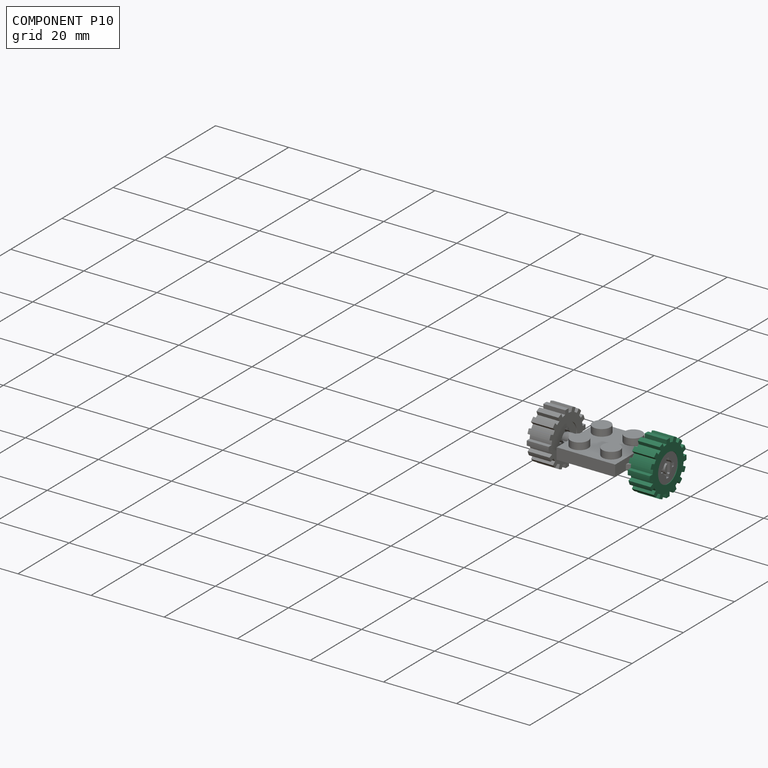
[diagram: component P10 — assembled]
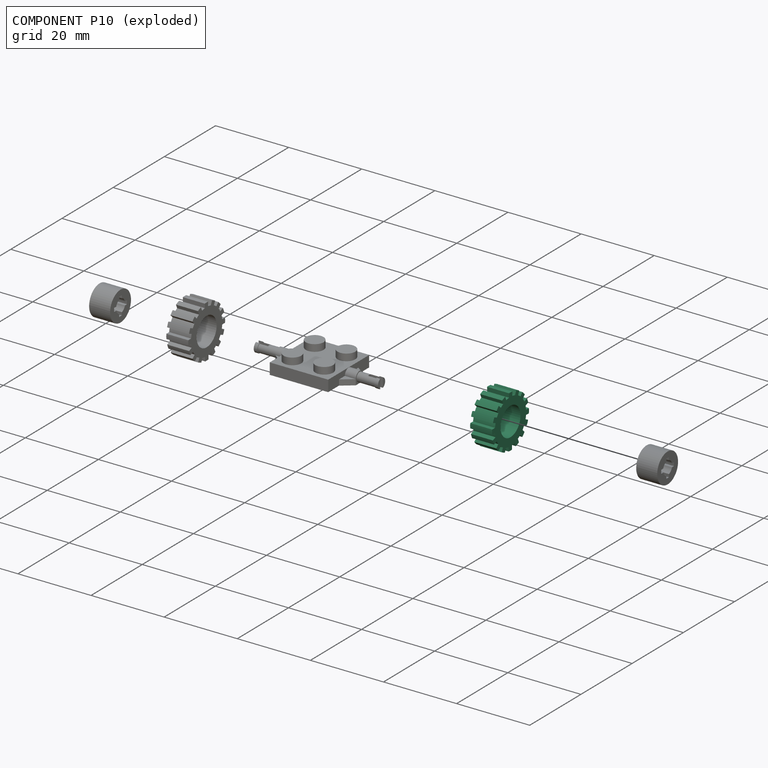
[diagram: component P10 — exploded]
COMPONENT P10 — recipe-attached (CADFS 00750091, mesh-verified: the recipe's output STEP matches this component's geometry to below the mesh-comparison resolution (tessellation chordal tolerance ~0.0318 mm)).
Held by: FASTENED mate "Fastened 3" to P7.
Construction recipe (FeatureScript — the CAD program that rebuilds this solid; sketch coordinates are in the units given by the * unit suffixes, e.g. mm):

FeatureScript 1511;
import(path : "onshape/std/geometry.fs", version : "1511.0");
import(path : "onshape/std/common.fs", version : "1511.0");
const mm = millimeter;
const VERTEX = EntityType.VERTEX;
const EDGE = EntityType.EDGE;
const FACE = EntityType.FACE;
const BODY = EntityType.BODY;
function v(x, y){return vector(x, y);}
function OD(order){return orderDisambiguation(order);}
function OSD(set){return originalSetDisambiguation(set);}
function TD(topology){return topologyDisambiguation(topology);}
function TDD(query){return trueDependencyDisambiguation(query);}
function sQuery(a, b, c) {return sketchEntityQuery(a, b, c);}

annotation { "Feature Type Name" : "Feature", "Feature Type Description" : "" }
export const myFeature = defineFeature(function(context is Context, id is Id, definition is map)
    precondition{}
    {
        {
            var Q0;
            Q0=qCreatedBy(makeId("Front.planeOp"),FACE);
            var sketch = newSketch(context, id + "F0", { "sketchPlane" : qUnion([Q0])});
            skCircle(sketch, "E0", {"center": v(0, 0) * mm, "radius": 3.9 * mm});
            skArc(sketch, "E1", {"start": v(-2.07, 6.9) * mm, "mid": v(-2.69, 6.68) * mm, "end": v(-3.28, 6.4) * mm});
            skCircle(sketch, "E2", {"center": v(0, 0) * mm, "radius": 6.1 * mm});
            skLineSegment(sketch, "E3", {"start": v(-0.58, 6.07) * mm, "end": v(-0.58, 7.18) * mm});
            skLineSegment(sketch, "E4", {"start": v(0.72, 6.06) * mm, "end": v(0.72, 7.16) * mm});
            skArc(sketch, "E5", {"start": v(0.72, 7.16) * mm, "mid": v(0.07, 7.2) * mm, "end": v(-0.58, 7.18) * mm});
            skArc(sketch, "E6", {"start": v(0.72, 6.06) * mm, "mid": v(0.07, 6.1) * mm, "end": v(-0.58, 6.07) * mm});
            skLineSegment(sketch, "E7.1.0", {"start": v(-1.65, 5.87) * mm, "end": v(-2.07, 6.9) * mm});
            skLineSegment(sketch, "E7.1.1", {"start": v(-2.86, 5.39) * mm, "end": v(-3.28, 6.4) * mm});
            skArc(sketch, "E7.1.3", {"start": v(-1.65, 5.87) * mm, "mid": v(-2.27, 5.67) * mm, "end": v(-2.86, 5.39) * mm});
            skLineSegment(sketch, "E7.2.0", {"start": v(-3.77, 4.8) * mm, "end": v(-4.56, 5.58) * mm});
            skLineSegment(sketch, "E7.2.1", {"start": v(-4.7, 3.89) * mm, "end": v(-5.48, 4.67) * mm});
            skArc(sketch, "E7.2.2", {"start": v(-4.56, 5.58) * mm, "mid": v(-5.04, 5.14) * mm, "end": v(-5.48, 4.67) * mm});
            skArc(sketch, "E7.2.3", {"start": v(-3.77, 4.8) * mm, "mid": v(-4.26, 4.37) * mm, "end": v(-4.7, 3.89) * mm});
            skLineSegment(sketch, "E7.3.0", {"start": v(-5.32, 2.98) * mm, "end": v(-6.34, 3.4) * mm});
            skLineSegment(sketch, "E7.3.1", {"start": v(-5.83, 1.79) * mm, "end": v(-6.85, 2.21) * mm});
            skArc(sketch, "E7.3.2", {"start": v(-6.34, 3.4) * mm, "mid": v(-6.62, 2.82) * mm, "end": v(-6.85, 2.21) * mm});
            skArc(sketch, "E7.3.3", {"start": v(-5.32, 2.98) * mm, "mid": v(-5.61, 2.4) * mm, "end": v(-5.83, 1.79) * mm});
            skLineSegment(sketch, "E7.4.0", {"start": v(-6.06, 0.72) * mm, "end": v(-7.16, 0.72) * mm});
            skLineSegment(sketch, "E7.4.1", {"start": v(-6.07, -0.58) * mm, "end": v(-7.18, -0.58) * mm});
            skArc(sketch, "E7.4.2", {"start": v(-7.16, 0.72) * mm, "mid": v(-7.2, 0.07) * mm, "end": v(-7.18, -0.58) * mm});
            skArc(sketch, "E7.4.3", {"start": v(-6.06, 0.72) * mm, "mid": v(-6.1, 0.07) * mm, "end": v(-6.07, -0.58) * mm});
            skLineSegment(sketch, "E7.5.0", {"start": v(-5.87, -1.65) * mm, "end": v(-6.9, -2.07) * mm});
            skLineSegment(sketch, "E7.5.1", {"start": v(-5.39, -2.86) * mm, "end": v(-6.4, -3.28) * mm});
            skArc(sketch, "E7.5.2", {"start": v(-6.9, -2.07) * mm, "mid": v(-6.68, -2.69) * mm, "end": v(-6.4, -3.28) * mm});
            skArc(sketch, "E7.5.3", {"start": v(-5.87, -1.65) * mm, "mid": v(-5.67, -2.27) * mm, "end": v(-5.39, -2.86) * mm});
            skLineSegment(sketch, "E7.6.0", {"start": v(-4.8, -3.77) * mm, "end": v(-5.58, -4.56) * mm});
            skLineSegment(sketch, "E7.6.1", {"start": v(-3.89, -4.7) * mm, "end": v(-4.67, -5.48) * mm});
            skArc(sketch, "E7.6.2", {"start": v(-5.58, -4.56) * mm, "mid": v(-5.14, -5.04) * mm, "end": v(-4.67, -5.48) * mm});
            skArc(sketch, "E7.6.3", {"start": v(-4.8, -3.77) * mm, "mid": v(-4.37, -4.26) * mm, "end": v(-3.89, -4.7) * mm});
            skLineSegment(sketch, "E7.7.0", {"start": v(-2.98, -5.32) * mm, "end": v(-3.4, -6.34) * mm});
            skLineSegment(sketch, "E7.7.1", {"start": v(-1.79, -5.83) * mm, "end": v(-2.21, -6.85) * mm});
            skArc(sketch, "E7.7.2", {"start": v(-3.4, -6.34) * mm, "mid": v(-2.82, -6.62) * mm, "end": v(-2.21, -6.85) * mm});
            skArc(sketch, "E7.7.3", {"start": v(-2.98, -5.32) * mm, "mid": v(-2.4, -5.61) * mm, "end": v(-1.79, -5.83) * mm});
            skLineSegment(sketch, "E7.8.0", {"start": v(-0.72, -6.06) * mm, "end": v(-0.72, -7.16) * mm});
            skLineSegment(sketch, "E7.8.1", {"start": v(0.58, -6.07) * mm, "end": v(0.58, -7.18) * mm});
            skArc(sketch, "E7.8.2", {"start": v(-0.72, -7.16) * mm, "mid": v(-0.07, -7.2) * mm, "end": v(0.58, -7.18) * mm});
            skArc(sketch, "E7.8.3", {"start": v(-0.72, -6.06) * mm, "mid": v(-0.07, -6.1) * mm, "end": v(0.58, -6.07) * mm});
            skLineSegment(sketch, "E7.9.0", {"start": v(1.65, -5.87) * mm, "end": v(2.07, -6.9) * mm});
            skLineSegment(sketch, "E7.9.1", {"start": v(2.86, -5.39) * mm, "end": v(3.28, -6.4) * mm});
            skArc(sketch, "E7.9.2", {"start": v(2.07, -6.9) * mm, "mid": v(2.69, -6.68) * mm, "end": v(3.28, -6.4) * mm});
            skArc(sketch, "E7.9.3", {"start": v(1.65, -5.87) * mm, "mid": v(2.27, -5.67) * mm, "end": v(2.86, -5.39) * mm});
            skLineSegment(sketch, "E7.10.0", {"start": v(3.77, -4.8) * mm, "end": v(4.56, -5.58) * mm});
            skLineSegment(sketch, "E7.10.1", {"start": v(4.7, -3.89) * mm, "end": v(5.48, -4.67) * mm});
            skArc(sketch, "E7.10.2", {"start": v(4.56, -5.58) * mm, "mid": v(5.04, -5.14) * mm, "end": v(5.48, -4.67) * mm});
            skArc(sketch, "E7.10.3", {"start": v(3.77, -4.8) * mm, "mid": v(4.26, -4.37) * mm, "end": v(4.7, -3.89) * mm});
            skLineSegment(sketch, "E7.11.0", {"start": v(5.32, -2.98) * mm, "end": v(6.34, -3.4) * mm});
            skLineSegment(sketch, "E7.11.1", {"start": v(5.83, -1.79) * mm, "end": v(6.85, -2.21) * mm});
            skArc(sketch, "E7.11.2", {"start": v(6.34, -3.4) * mm, "mid": v(6.62, -2.82) * mm, "end": v(6.85, -2.21) * mm});
            skArc(sketch, "E7.11.3", {"start": v(5.32, -2.98) * mm, "mid": v(5.61, -2.4) * mm, "end": v(5.83, -1.79) * mm});
            skLineSegment(sketch, "E7.12.0", {"start": v(6.06, -0.72) * mm, "end": v(7.16, -0.72) * mm});
            skLineSegment(sketch, "E7.12.1", {"start": v(6.07, 0.58) * mm, "end": v(7.18, 0.58) * mm});
            skArc(sketch, "E7.12.2", {"start": v(7.16, -0.72) * mm, "mid": v(7.2, -0.07) * mm, "end": v(7.18, 0.58) * mm});
            skArc(sketch, "E7.12.3", {"start": v(6.06, -0.72) * mm, "mid": v(6.1, -0.07) * mm, "end": v(6.07, 0.58) * mm});
            skLineSegment(sketch, "E7.13.0", {"start": v(5.87, 1.65) * mm, "end": v(6.9, 2.07) * mm});
            skLineSegment(sketch, "E7.13.1", {"start": v(5.39, 2.86) * mm, "end": v(6.4, 3.28) * mm});
            skArc(sketch, "E7.13.2", {"start": v(6.9, 2.07) * mm, "mid": v(6.68, 2.69) * mm, "end": v(6.4, 3.28) * mm});
            skArc(sketch, "E7.13.3", {"start": v(5.87, 1.65) * mm, "mid": v(5.67, 2.27) * mm, "end": v(5.39, 2.86) * mm});
            skLineSegment(sketch, "E7.14.0", {"start": v(4.8, 3.77) * mm, "end": v(5.58, 4.56) * mm});
            skLineSegment(sketch, "E7.14.1", {"start": v(3.89, 4.7) * mm, "end": v(4.67, 5.48) * mm});
            skArc(sketch, "E7.14.2", {"start": v(5.58, 4.56) * mm, "mid": v(5.14, 5.04) * mm, "end": v(4.67, 5.48) * mm});
            skArc(sketch, "E7.14.3", {"start": v(4.8, 3.77) * mm, "mid": v(4.37, 4.26) * mm, "end": v(3.89, 4.7) * mm});
            skLineSegment(sketch, "E7.15.0", {"start": v(2.98, 5.32) * mm, "end": v(3.4, 6.34) * mm});
            skLineSegment(sketch, "E7.15.1", {"start": v(1.79, 5.83) * mm, "end": v(2.21, 6.85) * mm});
            skArc(sketch, "E7.15.2", {"start": v(3.4, 6.34) * mm, "mid": v(2.82, 6.62) * mm, "end": v(2.21, 6.85) * mm});
            skArc(sketch, "E7.15.3", {"start": v(2.98, 5.32) * mm, "mid": v(2.4, 5.61) * mm, "end": v(1.79, 5.83) * mm});
            skSolve(sketch);
        }
        {
            var Q0;
            Q0 = qSketchRegion(id + "F0", true);
            extrude(context, id + "F1", {"entities" : qUnion([Q0]), "depth" : 6 * mm, "offsetDistance" : 25 * mm});
        }
    });
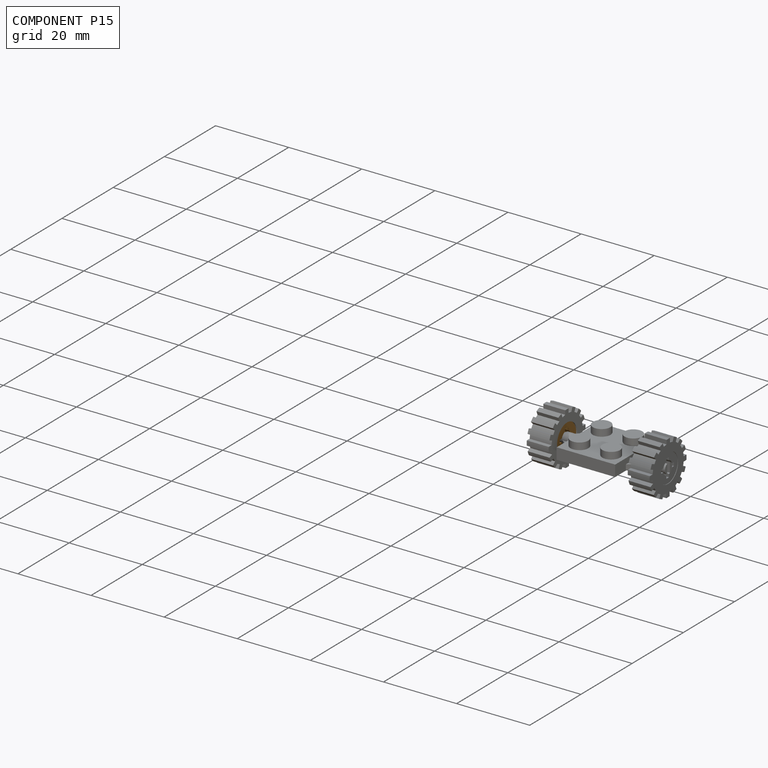
[diagram: component P15 — assembled]
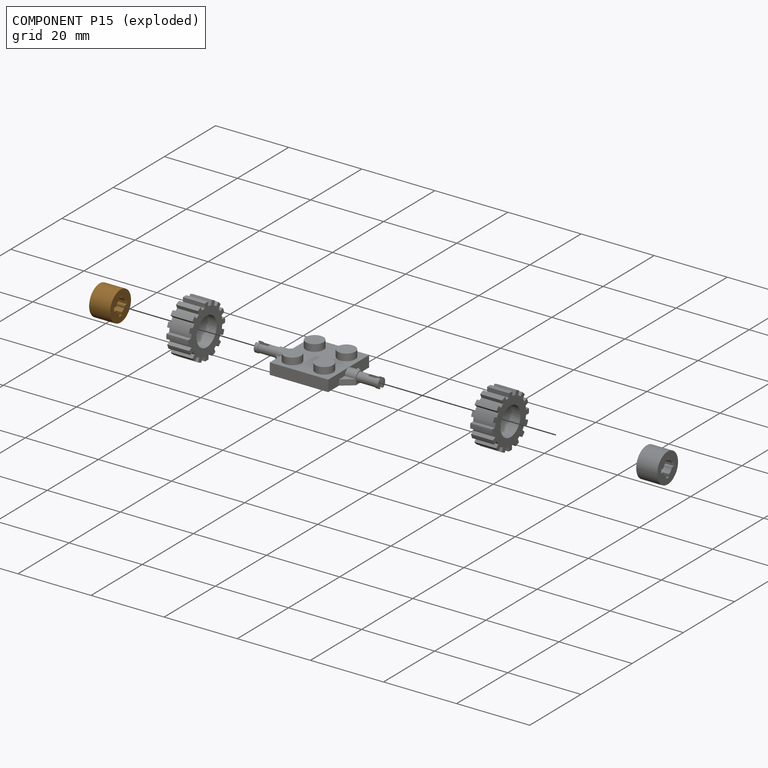
[diagram: component P15 — exploded]
COMPONENT P15 — geometry summary (no construction recipe available for this part):
  bounding box: 8.2 x 8.2 x 5.8 mm
  B-rep topology: 1 solid, 19 faces, 102 edges
  volume: 226 mm^3 (59% of its bounding box)
  symmetry: 2-fold rotationally symmetric about the x axis; 4-fold rotationally symmetric about the y axis; 2-fold rotationally symmetric about the z axis; mirror-symmetric across its x mid-plane, y mid-plane, z mid-plane
Held by: FASTENED mate "Fastened 4" to P2; FASTENED mate "Fastened 1" to P9.
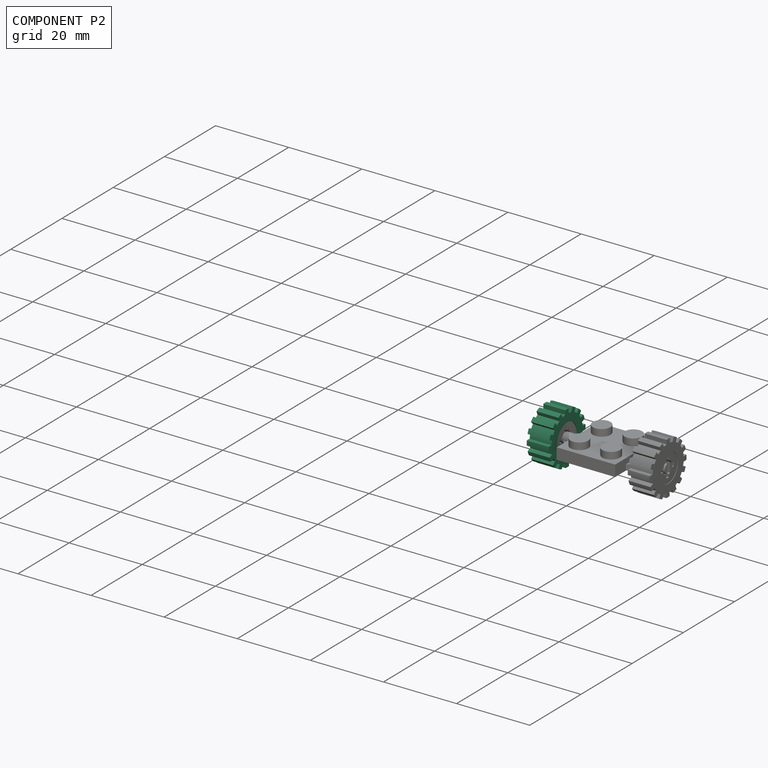
[diagram: component P2 — assembled]
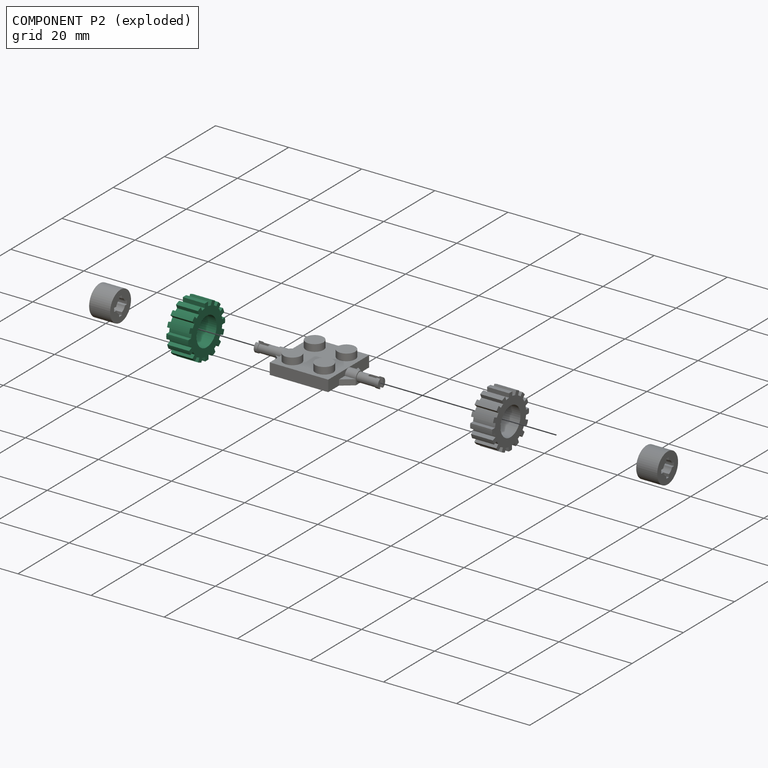
[diagram: component P2 — exploded]
COMPONENT P2 — recipe-attached (CADFS 00750091, mesh-verified: the recipe's output STEP matches this component's geometry to below the mesh-comparison resolution (tessellation chordal tolerance ~0.0318 mm)).
Held by: FASTENED mate "Fastened 4" to P15.
Construction recipe (FeatureScript — the CAD program that rebuilds this solid; sketch coordinates are in the units given by the * unit suffixes, e.g. mm):

FeatureScript 1511;
import(path : "onshape/std/geometry.fs", version : "1511.0");
import(path : "onshape/std/common.fs", version : "1511.0");
const mm = millimeter;
const VERTEX = EntityType.VERTEX;
const EDGE = EntityType.EDGE;
const FACE = EntityType.FACE;
const BODY = EntityType.BODY;
function v(x, y){return vector(x, y);}
function OD(order){return orderDisambiguation(order);}
function OSD(set){return originalSetDisambiguation(set);}
function TD(topology){return topologyDisambiguation(topology);}
function TDD(query){return trueDependencyDisambiguation(query);}
function sQuery(a, b, c) {return sketchEntityQuery(a, b, c);}

annotation { "Feature Type Name" : "Feature", "Feature Type Description" : "" }
export const myFeature = defineFeature(function(context is Context, id is Id, definition is map)
    precondition{}
    {
        {
            var Q0;
            Q0=qCreatedBy(makeId("Front.planeOp"),FACE);
            var sketch = newSketch(context, id + "F0", { "sketchPlane" : qUnion([Q0])});
            skCircle(sketch, "E0", {"center": v(0, 0) * mm, "radius": 3.9 * mm});
            skArc(sketch, "E1", {"start": v(-2.07, 6.9) * mm, "mid": v(-2.69, 6.68) * mm, "end": v(-3.28, 6.4) * mm});
            skCircle(sketch, "E2", {"center": v(0, 0) * mm, "radius": 6.1 * mm});
            skLineSegment(sketch, "E3", {"start": v(-0.58, 6.07) * mm, "end": v(-0.58, 7.18) * mm});
            skLineSegment(sketch, "E4", {"start": v(0.72, 6.06) * mm, "end": v(0.72, 7.16) * mm});
            skArc(sketch, "E5", {"start": v(0.72, 7.16) * mm, "mid": v(0.07, 7.2) * mm, "end": v(-0.58, 7.18) * mm});
            skArc(sketch, "E6", {"start": v(0.72, 6.06) * mm, "mid": v(0.07, 6.1) * mm, "end": v(-0.58, 6.07) * mm});
            skLineSegment(sketch, "E7.1.0", {"start": v(-1.65, 5.87) * mm, "end": v(-2.07, 6.9) * mm});
            skLineSegment(sketch, "E7.1.1", {"start": v(-2.86, 5.39) * mm, "end": v(-3.28, 6.4) * mm});
            skArc(sketch, "E7.1.3", {"start": v(-1.65, 5.87) * mm, "mid": v(-2.27, 5.67) * mm, "end": v(-2.86, 5.39) * mm});
            skLineSegment(sketch, "E7.2.0", {"start": v(-3.77, 4.8) * mm, "end": v(-4.56, 5.58) * mm});
            skLineSegment(sketch, "E7.2.1", {"start": v(-4.7, 3.89) * mm, "end": v(-5.48, 4.67) * mm});
            skArc(sketch, "E7.2.2", {"start": v(-4.56, 5.58) * mm, "mid": v(-5.04, 5.14) * mm, "end": v(-5.48, 4.67) * mm});
            skArc(sketch, "E7.2.3", {"start": v(-3.77, 4.8) * mm, "mid": v(-4.26, 4.37) * mm, "end": v(-4.7, 3.89) * mm});
            skLineSegment(sketch, "E7.3.0", {"start": v(-5.32, 2.98) * mm, "end": v(-6.34, 3.4) * mm});
            skLineSegment(sketch, "E7.3.1", {"start": v(-5.83, 1.79) * mm, "end": v(-6.85, 2.21) * mm});
            skArc(sketch, "E7.3.2", {"start": v(-6.34, 3.4) * mm, "mid": v(-6.62, 2.82) * mm, "end": v(-6.85, 2.21) * mm});
            skArc(sketch, "E7.3.3", {"start": v(-5.32, 2.98) * mm, "mid": v(-5.61, 2.4) * mm, "end": v(-5.83, 1.79) * mm});
            skLineSegment(sketch, "E7.4.0", {"start": v(-6.06, 0.72) * mm, "end": v(-7.16, 0.72) * mm});
            skLineSegment(sketch, "E7.4.1", {"start": v(-6.07, -0.58) * mm, "end": v(-7.18, -0.58) * mm});
            skArc(sketch, "E7.4.2", {"start": v(-7.16, 0.72) * mm, "mid": v(-7.2, 0.07) * mm, "end": v(-7.18, -0.58) * mm});
            skArc(sketch, "E7.4.3", {"start": v(-6.06, 0.72) * mm, "mid": v(-6.1, 0.07) * mm, "end": v(-6.07, -0.58) * mm});
            skLineSegment(sketch, "E7.5.0", {"start": v(-5.87, -1.65) * mm, "end": v(-6.9, -2.07) * mm});
            skLineSegment(sketch, "E7.5.1", {"start": v(-5.39, -2.86) * mm, "end": v(-6.4, -3.28) * mm});
            skArc(sketch, "E7.5.2", {"start": v(-6.9, -2.07) * mm, "mid": v(-6.68, -2.69) * mm, "end": v(-6.4, -3.28) * mm});
            skArc(sketch, "E7.5.3", {"start": v(-5.87, -1.65) * mm, "mid": v(-5.67, -2.27) * mm, "end": v(-5.39, -2.86) * mm});
            skLineSegment(sketch, "E7.6.0", {"start": v(-4.8, -3.77) * mm, "end": v(-5.58, -4.56) * mm});
            skLineSegment(sketch, "E7.6.1", {"start": v(-3.89, -4.7) * mm, "end": v(-4.67, -5.48) * mm});
            skArc(sketch, "E7.6.2", {"start": v(-5.58, -4.56) * mm, "mid": v(-5.14, -5.04) * mm, "end": v(-4.67, -5.48) * mm});
            skArc(sketch, "E7.6.3", {"start": v(-4.8, -3.77) * mm, "mid": v(-4.37, -4.26) * mm, "end": v(-3.89, -4.7) * mm});
            skLineSegment(sketch, "E7.7.0", {"start": v(-2.98, -5.32) * mm, "end": v(-3.4, -6.34) * mm});
            skLineSegment(sketch, "E7.7.1", {"start": v(-1.79, -5.83) * mm, "end": v(-2.21, -6.85) * mm});
            skArc(sketch, "E7.7.2", {"start": v(-3.4, -6.34) * mm, "mid": v(-2.82, -6.62) * mm, "end": v(-2.21, -6.85) * mm});
            skArc(sketch, "E7.7.3", {"start": v(-2.98, -5.32) * mm, "mid": v(-2.4, -5.61) * mm, "end": v(-1.79, -5.83) * mm});
            skLineSegment(sketch, "E7.8.0", {"start": v(-0.72, -6.06) * mm, "end": v(-0.72, -7.16) * mm});
            skLineSegment(sketch, "E7.8.1", {"start": v(0.58, -6.07) * mm, "end": v(0.58, -7.18) * mm});
            skArc(sketch, "E7.8.2", {"start": v(-0.72, -7.16) * mm, "mid": v(-0.07, -7.2) * mm, "end": v(0.58, -7.18) * mm});
            skArc(sketch, "E7.8.3", {"start": v(-0.72, -6.06) * mm, "mid": v(-0.07, -6.1) * mm, "end": v(0.58, -6.07) * mm});
            skLineSegment(sketch, "E7.9.0", {"start": v(1.65, -5.87) * mm, "end": v(2.07, -6.9) * mm});
            skLineSegment(sketch, "E7.9.1", {"start": v(2.86, -5.39) * mm, "end": v(3.28, -6.4) * mm});
            skArc(sketch, "E7.9.2", {"start": v(2.07, -6.9) * mm, "mid": v(2.69, -6.68) * mm, "end": v(3.28, -6.4) * mm});
            skArc(sketch, "E7.9.3", {"start": v(1.65, -5.87) * mm, "mid": v(2.27, -5.67) * mm, "end": v(2.86, -5.39) * mm});
            skLineSegment(sketch, "E7.10.0", {"start": v(3.77, -4.8) * mm, "end": v(4.56, -5.58) * mm});
            skLineSegment(sketch, "E7.10.1", {"start": v(4.7, -3.89) * mm, "end": v(5.48, -4.67) * mm});
            skArc(sketch, "E7.10.2", {"start": v(4.56, -5.58) * mm, "mid": v(5.04, -5.14) * mm, "end": v(5.48, -4.67) * mm});
            skArc(sketch, "E7.10.3", {"start": v(3.77, -4.8) * mm, "mid": v(4.26, -4.37) * mm, "end": v(4.7, -3.89) * mm});
            skLineSegment(sketch, "E7.11.0", {"start": v(5.32, -2.98) * mm, "end": v(6.34, -3.4) * mm});
            skLineSegment(sketch, "E7.11.1", {"start": v(5.83, -1.79) * mm, "end": v(6.85, -2.21) * mm});
            skArc(sketch, "E7.11.2", {"start": v(6.34, -3.4) * mm, "mid": v(6.62, -2.82) * mm, "end": v(6.85, -2.21) * mm});
            skArc(sketch, "E7.11.3", {"start": v(5.32, -2.98) * mm, "mid": v(5.61, -2.4) * mm, "end": v(5.83, -1.79) * mm});
            skLineSegment(sketch, "E7.12.0", {"start": v(6.06, -0.72) * mm, "end": v(7.16, -0.72) * mm});
            skLineSegment(sketch, "E7.12.1", {"start": v(6.07, 0.58) * mm, "end": v(7.18, 0.58) * mm});
            skArc(sketch, "E7.12.2", {"start": v(7.16, -0.72) * mm, "mid": v(7.2, -0.07) * mm, "end": v(7.18, 0.58) * mm});
            skArc(sketch, "E7.12.3", {"start": v(6.06, -0.72) * mm, "mid": v(6.1, -0.07) * mm, "end": v(6.07, 0.58) * mm});
            skLineSegment(sketch, "E7.13.0", {"start": v(5.87, 1.65) * mm, "end": v(6.9, 2.07) * mm});
            skLineSegment(sketch, "E7.13.1", {"start": v(5.39, 2.86) * mm, "end": v(6.4, 3.28) * mm});
            skArc(sketch, "E7.13.2", {"start": v(6.9, 2.07) * mm, "mid": v(6.68, 2.69) * mm, "end": v(6.4, 3.28) * mm});
            skArc(sketch, "E7.13.3", {"start": v(5.87, 1.65) * mm, "mid": v(5.67, 2.27) * mm, "end": v(5.39, 2.86) * mm});
            skLineSegment(sketch, "E7.14.0", {"start": v(4.8, 3.77) * mm, "end": v(5.58, 4.56) * mm});
            skLineSegment(sketch, "E7.14.1", {"start": v(3.89, 4.7) * mm, "end": v(4.67, 5.48) * mm});
            skArc(sketch, "E7.14.2", {"start": v(5.58, 4.56) * mm, "mid": v(5.14, 5.04) * mm, "end": v(4.67, 5.48) * mm});
            skArc(sketch, "E7.14.3", {"start": v(4.8, 3.77) * mm, "mid": v(4.37, 4.26) * mm, "end": v(3.89, 4.7) * mm});
            skLineSegment(sketch, "E7.15.0", {"start": v(2.98, 5.32) * mm, "end": v(3.4, 6.34) * mm});
            skLineSegment(sketch, "E7.15.1", {"start": v(1.79, 5.83) * mm, "end": v(2.21, 6.85) * mm});
            skArc(sketch, "E7.15.2", {"start": v(3.4, 6.34) * mm, "mid": v(2.82, 6.62) * mm, "end": v(2.21, 6.85) * mm});
            skArc(sketch, "E7.15.3", {"start": v(2.98, 5.32) * mm, "mid": v(2.4, 5.61) * mm, "end": v(1.79, 5.83) * mm});
            skSolve(sketch);
        }
        {
            var Q0;
            Q0 = qSketchRegion(id + "F0", true);
            extrude(context, id + "F1", {"entities" : qUnion([Q0]), "depth" : 6 * mm, "offsetDistance" : 25 * mm});
        }
    });
PROVENANCE & LICENSES
Assembly (occurrences, transforms, mates, per-part STEP geometry): AutoMate dataset, Zenodo record 7776208, CC0.
Construction recipes: CADFS (HuggingFace VladPyatov/CADFS, CC-BY-4.0, layered over the ABC dataset), FeatureScript reconstruction programs keyed by ABC model id.
Join: ABC meta listings map ABC model id -> Onshape documentId; within a shared document, parts are matched by geometric signature (bounding-box dims + volume at 0.1% relative tolerance, exact B-rep face/solid counts).
Verification: 14 of this assembly's 19 components carry a recipe attachment, and every attachment is mesh-verified: the CADFS STEP and the AutoMate member STEP were compared as meshes in their shared local frame (symmetric sampled-point-to-mesh distance); worst across the 14 attachments: below the mesh-comparison resolution (tessellation chordal tolerance ~0.0763 mm) on a 51 mm part.
Renders: orthographic iso camera (az 35 / el 25); the floor grid conveys scale (grid pitch printed in each image; no ruler). In the exploded view each component is displaced by its stored offset vector: the offsets alone carry the explosion direction (mate normal/axis signs are not orientation cues and do not encode it), and separation distances are assigned per mate-chain, not proportionally to assembly-order depth.
